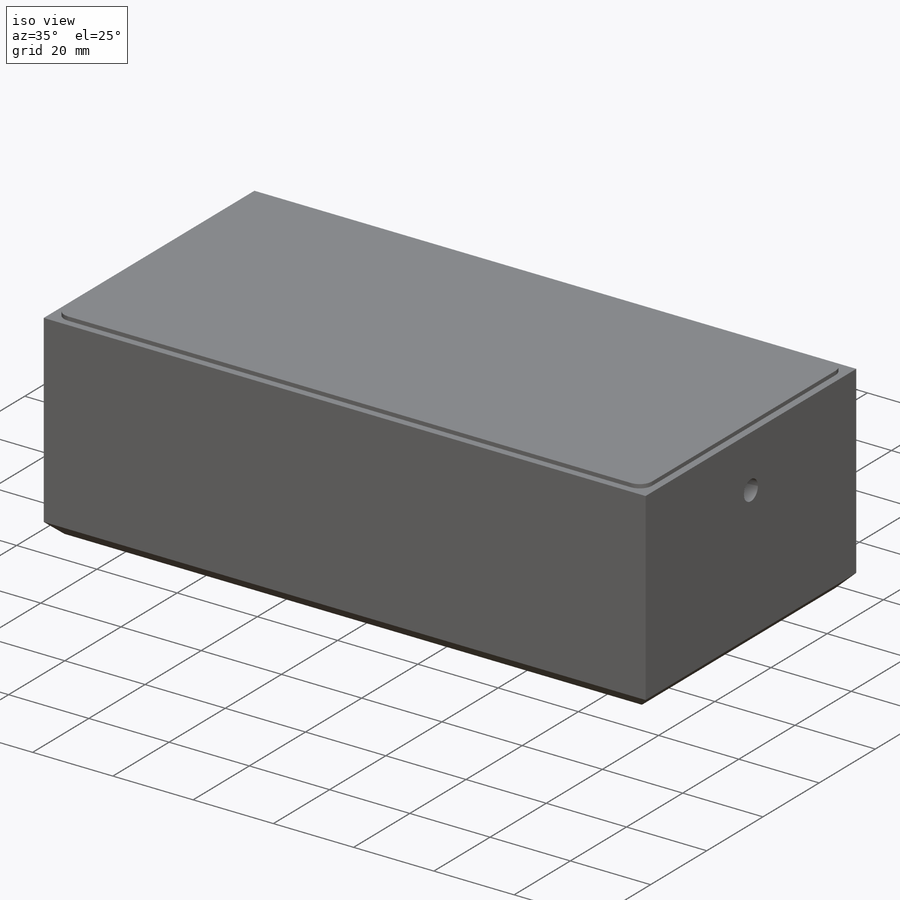
[diagram: iso view]
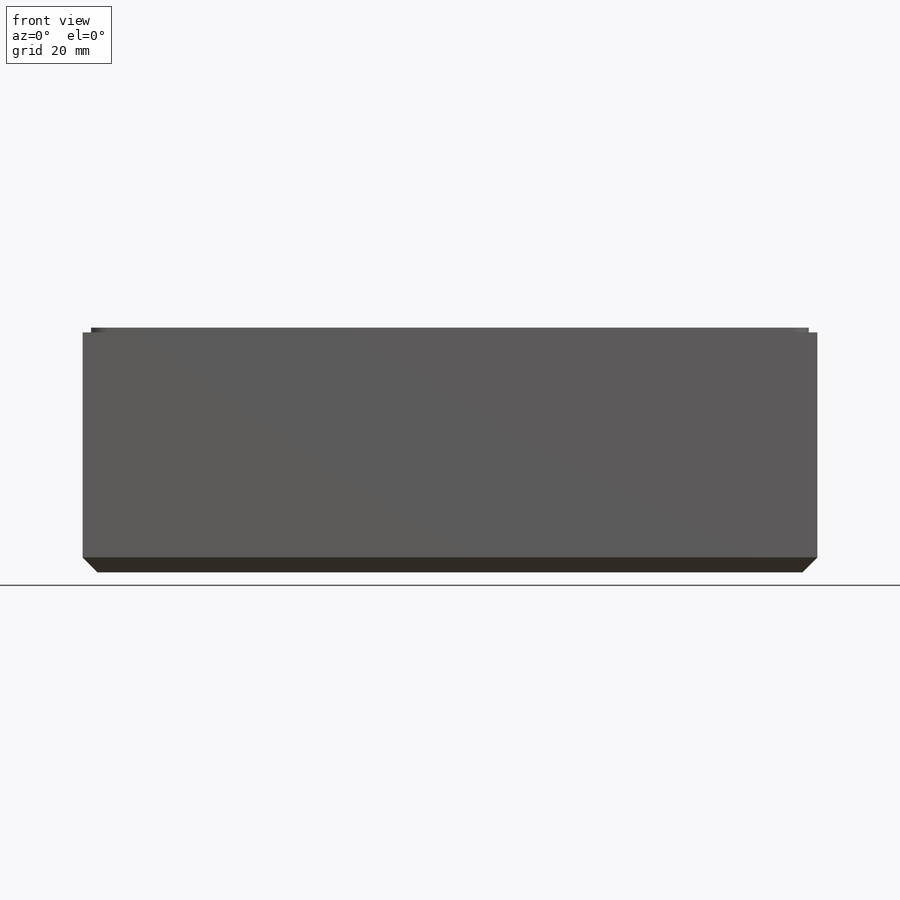
[diagram: front view]
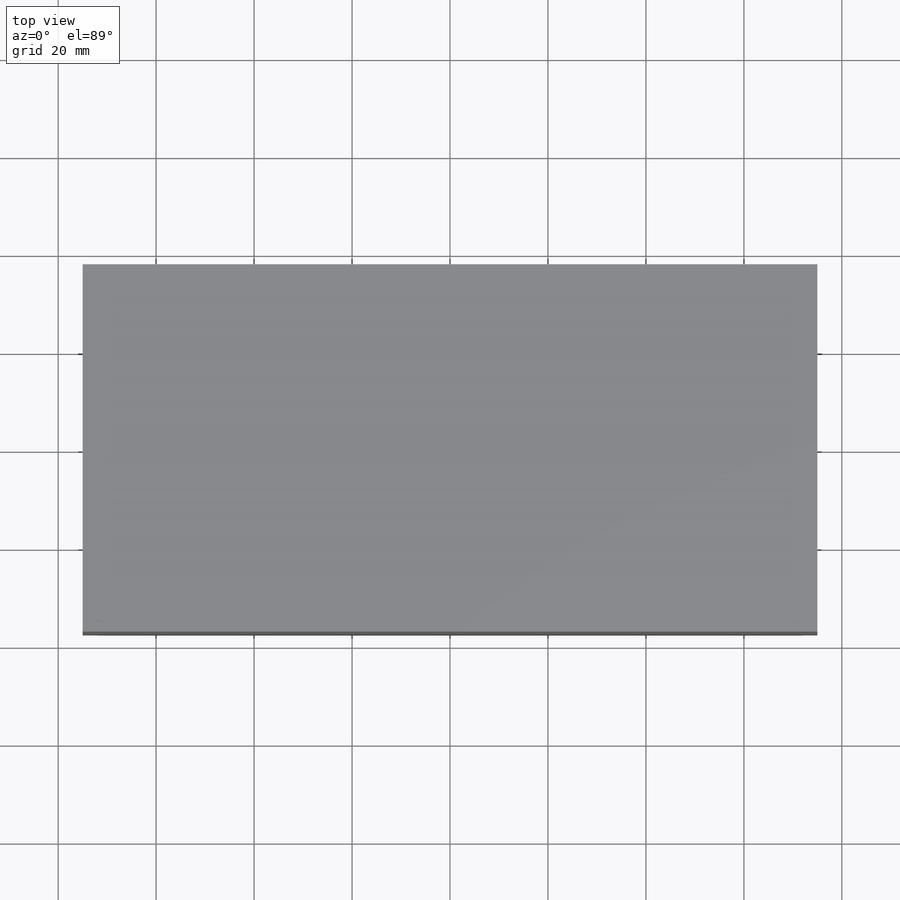
[diagram: top view]
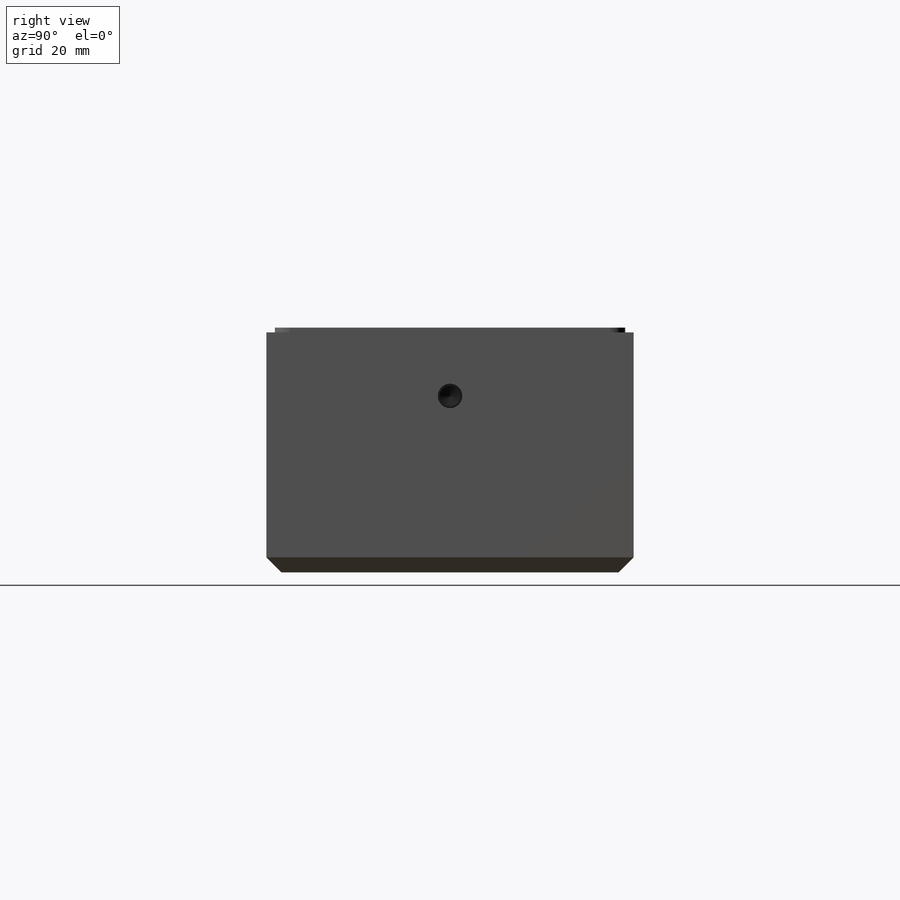
[diagram: right view]
SOLIDWORKS PART (.sldprt)
format: sldprt  version: not decoded by parser v0  size: 377,856 bytes
history: native  units: mm
features: sketch x14, hole x5, extrude x2, material x1, cut_revolve x1, thread x1, pattern_circular x1, chamfer x1 (+15 scaffold rows collapsed)
feature tree (41):
  scaffold x15  (default folders/planes/origin — collapsed)
  material  "6061 Alloy"
  sketch  "Sketch1"  dims[D1=75.0mm D2=150.0mm]
  extrude  "Extrude1"  Depth=48.9966mm
  sketch  "Sketch3"  dims[D1=25.0136mm D2=0.508mm]
  cut_revolve  "Cut-Revolve1"  Angle=360deg
  hole  "M3x0.5 Tapped Hole1"  Diameter=2.5mm Depth=7.849997mm
  sketch  "Sketch5"  dims[c1.D1=38.1mm c1.D2=19.05mm c2.D2=120.0deg]
  sketch  "Sketch4"  dims[hole-wizard template sketch: 47 standard entries collapsed; hole parameters kept: c15.Tap Drill Depth=~7.849997mm c15.D3=~14.816244mm c15.Drill Angle=120.0deg]
  thread  "Hole Thread1"  Diameter=6.35mm  [1 undecoded]
  pattern_circular  "CirPattern1"  Count=3 Angle=360deg
  hole  "M5x0.8 Tapped Hole1"  Diameter=4.2mm Depth=15.24mm
  sketch  "Sketch7"  dims[c1.D1=25.0mm c1.D2=37.5mm c2.D1=25.0mm]
  sketch  "Sketch6"  dims[hole-wizard template sketch: 29 standard entries collapsed; hole parameters kept: c8.Tap Drill Depth=15.24mm c8.Thread Major Dia.=5.0mm c8.Thread Depth=10.16mm c8.D5=~14.816244mm c8.Drill Angle=118.0deg]
  hole  "1/4 (0.25) Diameter Hole1"  Diameter=6.35mm Depth=9.652mm
  sketch  "Sketch9"  dims[D1=37.5mm D2=125.0mm]
  sketch  "Sketch8"  dims[hole-wizard template sketch: 47 standard entries collapsed; hole parameters kept: c15.Hole Depth=9.652mm c15.D3=~14.816244mm c15.Drill Angle=118.0deg]
  hole  "M5x0.8 Tapped Hole2"  Diameter=4.2mm Depth=15.24mm
  sketch  "Sketch11"  dims[c1.D1=35.99mm c1.D2=37.5mm c2.D1=35.9918mm]
  sketch  "Sketch10"  dims[hole-wizard template sketch: 29 standard entries collapsed; hole parameters kept: c8.Tap Drill Depth=15.24mm c8.Thread Major Dia.=5.0mm c8.Thread Depth=10.16mm c8.D5=~14.816244mm c8.Drill Angle=118.0deg]
  hole  "3/16 (0.1875) Diameter Hole1"  Diameter=4.7625mm Depth=12.446mm
  sketch  "Sketch13"  dims[D1=75.0062mm D2=37.5158mm]
  sketch  "Sketch12"  dims[hole-wizard template sketch: 47 standard entries collapsed; hole parameters kept: c15.Hole Depth=12.446mm c15.D3=~14.816244mm c15.Drill Angle=180.0deg]
  chamfer  "Chamfer1"  Distance=3.048mm Angle=45deg
  sketch  "Sketch14"  dims[D5=3.175mm D1=1.6637mm D2=1.6637mm D3=71.7042mm D4=146.7104mm D6=0.0889mm]
  extrude  "Extrude2"  Depth=0.9652mm
  sketch  "Sketch15"  dims[D2=24.9936mm D1=13.0mm]
decode coverage: 25 of 25 modeling features carry decoded parameters
note: ~ marks probable driven/reference dimensions
note: 1 parameter value undecoded
summary: Diameter pulled from absorbed wizard sketch
note: suppression state not decoded; provenance and decode notes live in map.json
